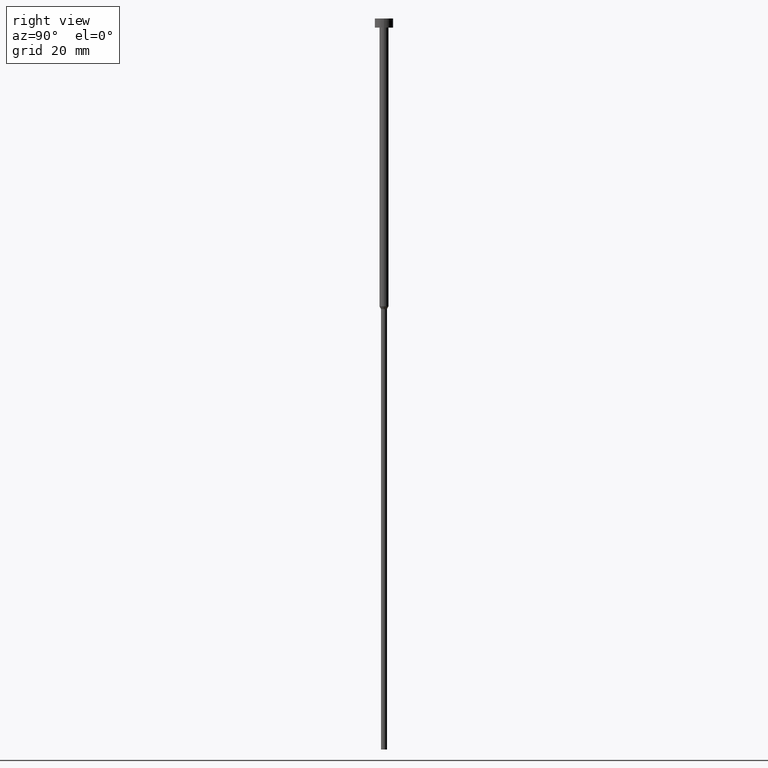
[diagram: clean part render]
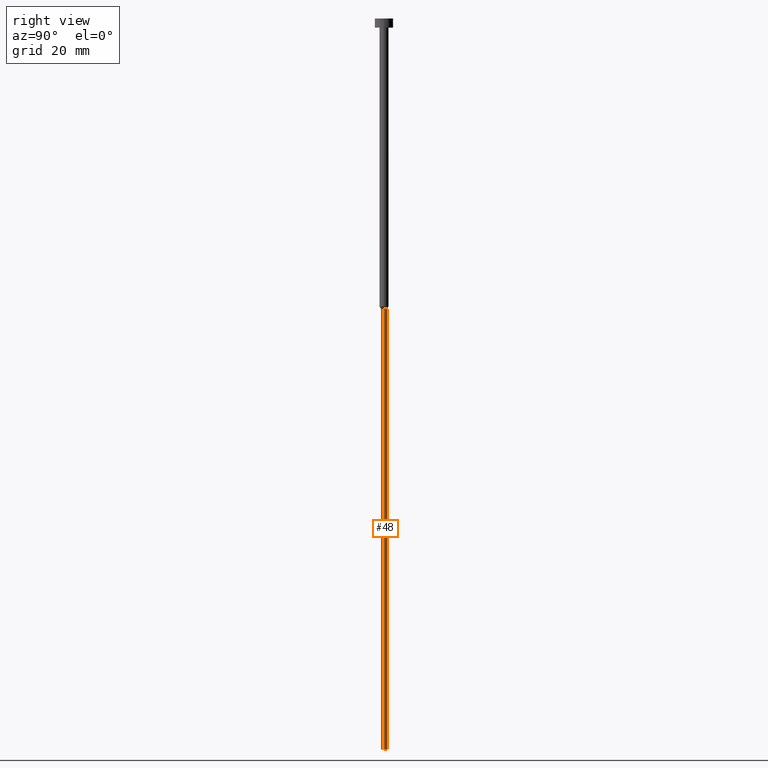
[diagram: same view with one face highlighted and labeled with its STEP entity id]
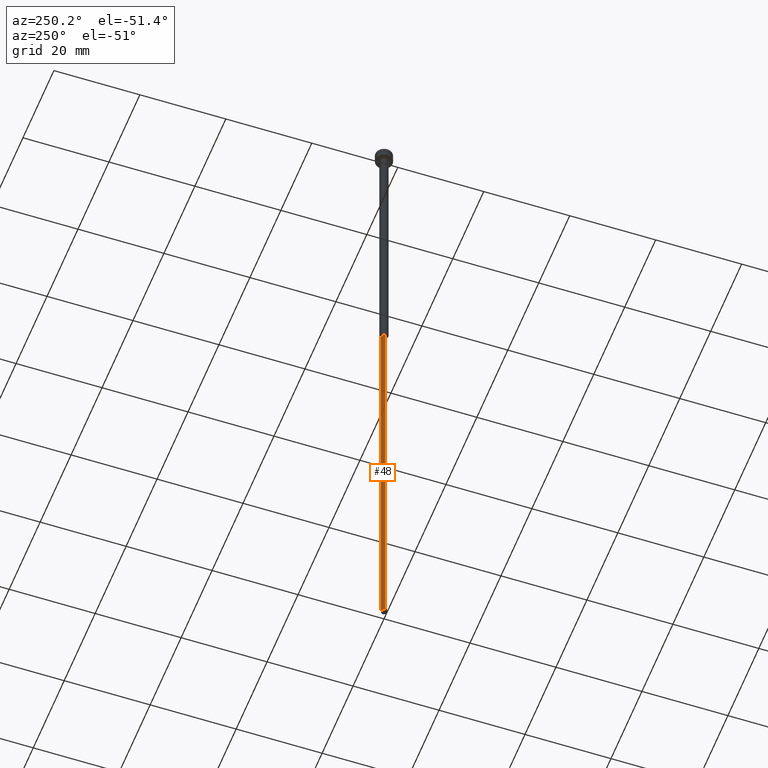
[diagram: same view with one face highlighted and labeled with its STEP entity id]
A machine part, right view. The second image highlights one B-rep face of the part: STEP entity #48.
A second angle (auxiliary view) of the same face is appended — the face is thin or edge-on in the first view.
In plain terms, the highlighted cylindrical surface (edge-blend (fillet) strip) has radius 0.65 mm, axis along (-0, -0, 1).
Its self-contained STEP definition (entity closure, byte-faithful):
#2 = VERTEX_POINT ( 'NONE', #328 ) ;
#18 = EDGE_CURVE ( 'NONE', #74, #2, #232, .T. ) ;
#20 = CARTESIAN_POINT ( 'NONE',  ( 0.000000000000000000, 0.000000000000000000, -63.60621778264910375 ) ) ;
#37 = CARTESIAN_POINT ( 'NONE',  ( 0.6500000000000000222, 0.000000000000000000, -160.0000000000000000 ) ) ;
#48 = ADVANCED_FACE ( 'NONE', ( #249 ), #279, .T. ) ;
#49 = CARTESIAN_POINT ( 'NONE',  ( 0.000000000000000000, 0.000000000000000000, -160.0000000000000000 ) ) ;
#59 = AXIS2_PLACEMENT_3D ( 'NONE', #311, #282, #142 ) ;
#74 = VERTEX_POINT ( 'NONE', #231 ) ;
#78 = ORIENTED_EDGE ( 'NONE', *, *, #277, .F. ) ;
#85 = VERTEX_POINT ( 'NONE', #92 ) ;
#92 = CARTESIAN_POINT ( 'NONE',  ( 0.6500000000000000222, 0.000000000000000000, -63.60621778264910375 ) ) ;
#102 = EDGE_LOOP ( 'NONE', ( #182, #160, #78, #333 ) ) ;
#117 = VECTOR ( 'NONE', #156, 1000.000000000000000 ) ;
#131 = VERTEX_POINT ( 'NONE', #37 ) ;
#135 = AXIS2_PLACEMENT_3D ( 'NONE', #20, #354, #186 ) ;
#137 = DIRECTION ( 'NONE',  ( -0.000000000000000000, -0.000000000000000000, 1.000000000000000000 ) ) ;
#142 = DIRECTION ( 'NONE',  ( 1.000000000000000000, 0.000000000000000000, 0.000000000000000000 ) ) ;
#151 = DIRECTION ( 'NONE',  ( -0.000000000000000000, -0.000000000000000000, 1.000000000000000000 ) ) ;
#156 = DIRECTION ( 'NONE',  ( -0.000000000000000000, -0.000000000000000000, 1.000000000000000000 ) ) ;
#160 = ORIENTED_EDGE ( 'NONE', *, *, #18, .T. ) ;
#182 = ORIENTED_EDGE ( 'NONE', *, *, #320, .T. ) ;
#186 = DIRECTION ( 'NONE',  ( 1.000000000000000000, 0.000000000000000000, 0.000000000000000000 ) ) ;
#201 = CARTESIAN_POINT ( 'NONE',  ( -0.6500000000000000222, 7.960204194457795477E-17, 0.000000000000000000 ) ) ;
#205 = CIRCLE ( 'NONE', #135, 0.6500000000000000222 ) ;
#230 = AXIS2_PLACEMENT_3D ( 'NONE', #49, #151, #351 ) ;
#231 = CARTESIAN_POINT ( 'NONE',  ( -0.6500000000000000222, 7.960204194457795477E-17, -160.0000000000000000 ) ) ;
#232 = LINE ( 'NONE', #201, #287 ) ;
#249 = FACE_OUTER_BOUND ( 'NONE', #102, .T. ) ;
#268 = LINE ( 'NONE', #347, #117 ) ;
#277 = EDGE_CURVE ( 'NONE', #85, #2, #205, .T. ) ;
#279 = CYLINDRICAL_SURFACE ( 'NONE', #59, 0.6500000000000000222 ) ;
#282 = DIRECTION ( 'NONE',  ( -0.000000000000000000, -0.000000000000000000, 1.000000000000000000 ) ) ;
#287 = VECTOR ( 'NONE', #137, 1000.000000000000000 ) ;
#303 = CIRCLE ( 'NONE', #230, 0.6500000000000000222 ) ;
#311 = CARTESIAN_POINT ( 'NONE',  ( 0.000000000000000000, 0.000000000000000000, 0.000000000000000000 ) ) ;
#318 = EDGE_CURVE ( 'NONE', #131, #85, #268, .T. ) ;
#320 = EDGE_CURVE ( 'NONE', #131, #74, #303, .T. ) ;
#328 = CARTESIAN_POINT ( 'NONE',  ( -0.6500000000000000222, 7.960204194457795477E-17, -63.60621778264910375 ) ) ;
#333 = ORIENTED_EDGE ( 'NONE', *, *, #318, .F. ) ;
#347 = CARTESIAN_POINT ( 'NONE',  ( 0.6500000000000000222, 0.000000000000000000, 0.000000000000000000 ) ) ;
#351 = DIRECTION ( 'NONE',  ( 1.000000000000000000, 0.000000000000000000, 0.000000000000000000 ) ) ;
#354 = DIRECTION ( 'NONE',  ( -0.000000000000000000, -0.000000000000000000, 1.000000000000000000 ) ) ;